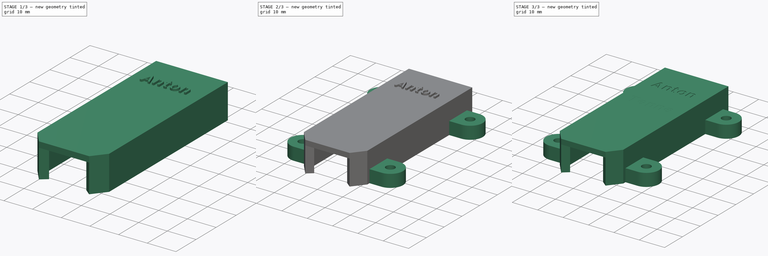
[diagram: build sequence overview — one tinted view per stage of 3, left to right]
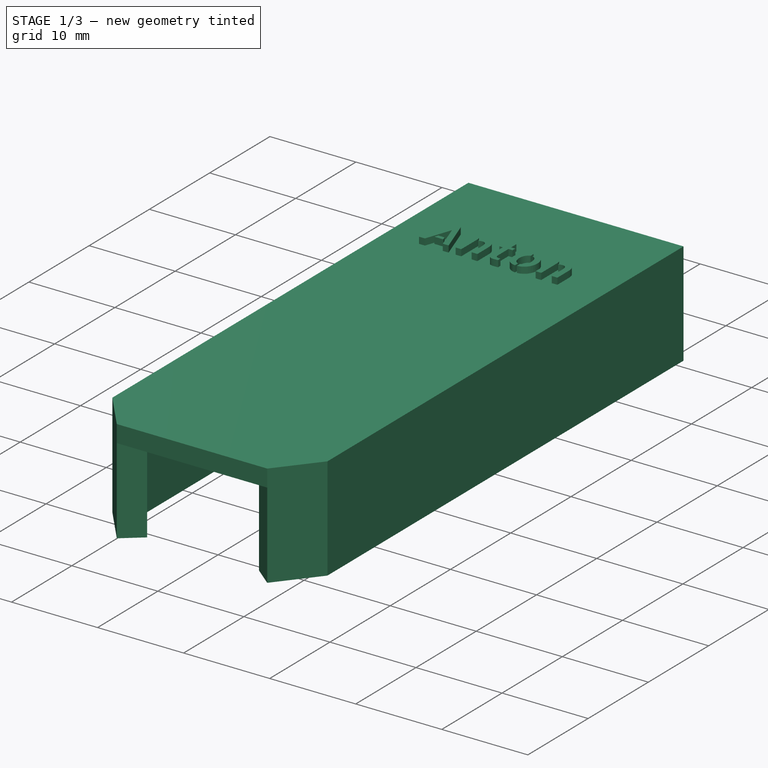
[diagram: stage 1 of 3 — iso view after this stage's code; geometry added in this stage tinted green]
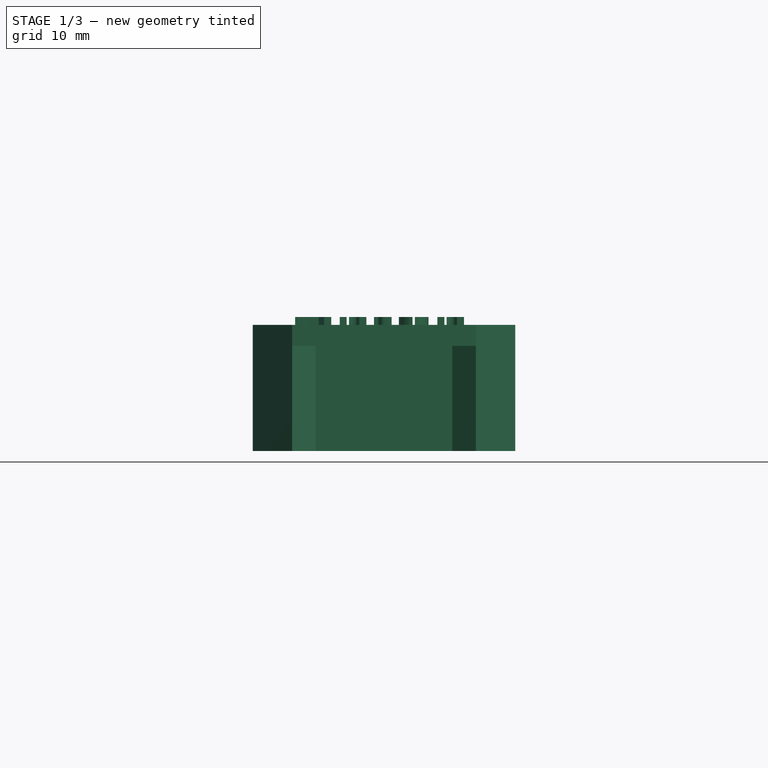
[diagram: stage 1 of 3 — front view after this stage's code; geometry added in this stage tinted green]
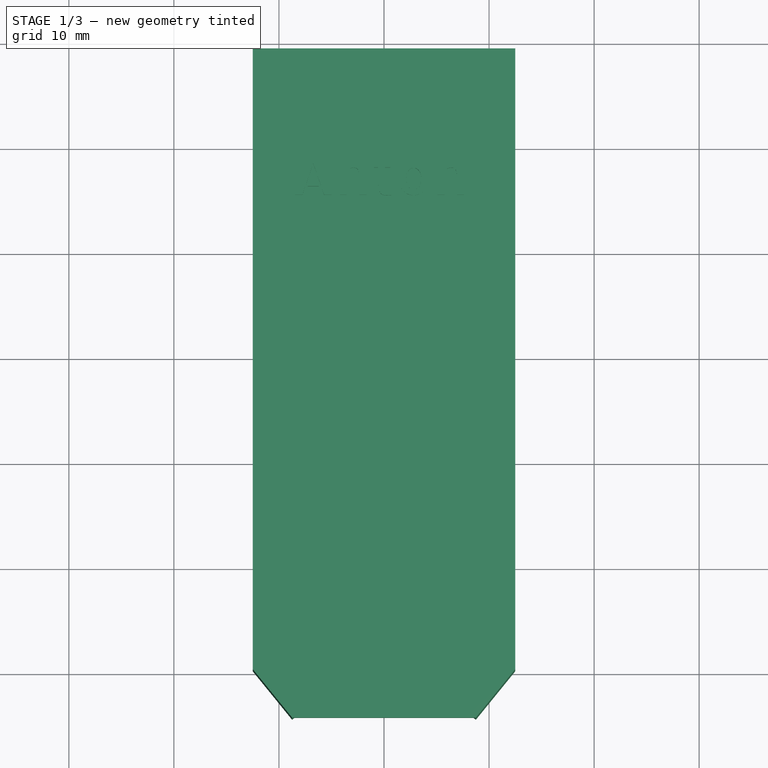
[diagram: stage 1 of 3 — top view after this stage's code; geometry added in this stage tinted green]
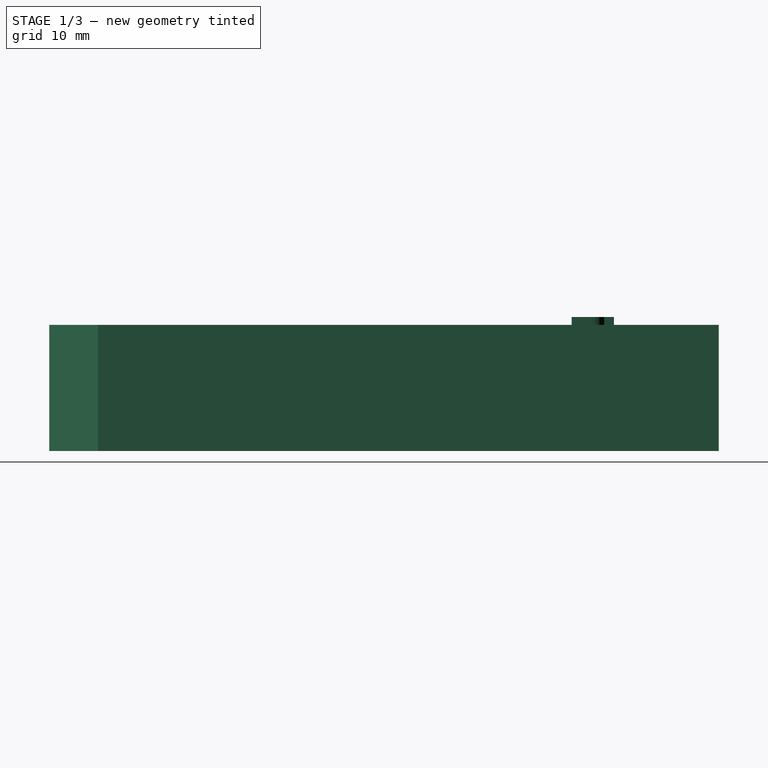
[diagram: stage 1 of 3 — right view after this stage's code; geometry added in this stage tinted green]
FCSTD DOCUMENT  (FreeCAD 1.0R39319 (Git))
Label: Bt_Antennenhalter
License: All rights reserved
LicenseURL: http://en.wikipedia.org/wiki/All_rights_reserved
objects: Sketcher::SketchObject×5, PartDesign::Pad×3, Part::Feature×2, Part::Extrusion×2, Part::Cut×2, PartDesign::Pocket×1, PartDesign::Body×1
note: 29 computed .brp shape members not serialized (recipe doc carries the construction recipe); baked Part::Feature solids carry a one-line shape summary decoded from their .brp

FEATURE [Sketcher::SketchObject] Sketch
  ArcFitTolerance = 1e-06
  AttachmentSupport = -> [XY_Plane]
  FullyConstrained = true
  MakeInternals = false
  MapMode = 5
  sketch-geometry (27):
    g0: LineSegment StartX=-9.5 StartY=0 StartZ=0 EndX=-9.5 EndY=26.4 EndZ=0
    g1: LineSegment StartX=-9.5 StartY=26.4 StartZ=0 EndX=9.5 EndY=26.4 EndZ=0
    g2: LineSegment StartX=9.5 StartY=26.4 StartZ=0 EndX=9.5 EndY=0 EndZ=0
    g3: LineSegment StartX=-12.5 StartY=0 StartZ=0 EndX=-12.5 EndY=29.4 EndZ=0
    g4: LineSegment StartX=-12.5 StartY=29.4 StartZ=0 EndX=12.5 EndY=29.4 EndZ=0
    g5: LineSegment StartX=12.5 StartY=29.4 StartZ=0 EndX=12.5 EndY=0 EndZ=0
    g6: LineSegment StartX=-9.75 StartY=-2.5 StartZ=0 EndX=-9.75 EndY=-28.5 EndZ=0
    g7: LineSegment StartX=9.75 StartY=-2.5 StartZ=0 EndX=9.75 EndY=-28.5 EndZ=0
    g8: LineSegment StartX=12.5 StartY=-2.5 StartZ=0 EndX=12.5 EndY=-29.699 EndZ=0
    g9: LineSegment StartX=12.5 StartY=-29.699 StartZ=0 EndX=8.74325 EndY=-34.3226 EndZ=0
    g10: LineSegment StartX=8.74325 StartY=-34.3226 StartZ=0 EndX=6.5 EndY=-32.5 EndZ=0
    g11: LineSegment StartX=6.5 StartY=-32.5 StartZ=0 EndX=9.75 EndY=-28.5 EndZ=0
    g12: LineSegment StartX=-12.5 StartY=-2.5 StartZ=0 EndX=-12.5 EndY=-29.699 EndZ=0
    g13: LineSegment StartX=-12.5 StartY=-29.699 StartZ=0 EndX=-8.74325 EndY=-34.3226 EndZ=0
    g14: LineSegment StartX=-8.74325 StartY=-34.3226 StartZ=0 EndX=-6.5 EndY=-32.5 EndZ=0
    g15: LineSegment StartX=-6.5 StartY=-32.5 StartZ=0 EndX=-9.75 EndY=-28.5 EndZ=0
    g16: LineSegment [constr] StartX=-12.5 StartY=-29.699 StartZ=0 EndX=-9.75 EndY=-28.5 EndZ=0
    g17: LineSegment [constr] StartX=9.75 StartY=-28.5 StartZ=0 EndX=12.5 EndY=-29.699 EndZ=0
    g18: LineSegment StartX=-12.5 StartY=0 StartZ=0 EndX=-12.5 EndY=-2.5 EndZ=0
    g19: LineSegment StartX=-9.75 StartY=-2.5 StartZ=0 EndX=-9.5 EndY=0 EndZ=0
    g20: LineSegment StartX=12.5 StartY=-2.5 StartZ=0 EndX=12.5 EndY=0 EndZ=0
    g21: LineSegment [constr] StartX=-12.5 StartY=-2.5 StartZ=0 EndX=12.5 EndY=-2.5 EndZ=0
    g22: LineSegment [constr] StartX=-6.5 StartY=-32.5 StartZ=0 EndX=6.5 EndY=-32.5 EndZ=0
    g23: LineSegment [constr] StartX=8.74325 StartY=-34.3226 StartZ=0 EndX=-8.74325 EndY=-34.3226 EndZ=0
    g24: LineSegment [constr] StartX=-9.75 StartY=-28.5 StartZ=0 EndX=9.75 EndY=-28.5 EndZ=0
    g25: LineSegment [constr] StartX=12.5 StartY=-29.699 StartZ=0 EndX=-12.5 EndY=-29.699 EndZ=0
    g26: LineSegment StartX=9.5 StartY=0 StartZ=0 EndX=9.75 EndY=-2.5 EndZ=0
  constraints (73):
    c: PointOnObject(g0,g-1)
    c: Vertical(g0)
    c: Coincident(g1,g0)
    c: Horizontal(g1)
    c: Coincident(g2,g1)
    c: PointOnObject(g2,g-1)
    c: Vertical(g2)
    c: Distance(g2,g2) = 26.4
    c: Distance(g1,g1) = 19
    c: PointOnObject(g3,g-1)
    c: Vertical(g3)
    c: Coincident(g4,g3)
    c: Coincident(g5,g4)
    c: PointOnObject(g5,g-1)
    c: Vertical(g5)
    c: Vertical(g6)
    c: Vertical(g7)
    c: Vertical(g8)
    c: Coincident(g9,g8)
    c: Coincident(g10,g9)
    c: Coincident(g11,g10)
    c: Coincident(g11,g7)
    c: Vertical(g12)
    c: Coincident(g13,g12)
    c: Coincident(g14,g13)
    c: Coincident(g15,g14)
    c: Coincident(g15,g6)
    c: Perpendicular(g14,g13,g13) = 4.71239
    c: Perpendicular(g14,g15)
    c: Perpendicular(g10,g11)
    c: Perpendicular(g10,g9)
    c: Coincident(g16,g12)
    c: Coincident(g16,g6)
    c: Coincident(g17,g7)
    c: Coincident(g17,g8)
    c: Distance(g6,g7) = 19.5
    c: Coincident(g18,g3)
    c: Coincident(g18,g12)
    c: Vertical(g18)
    c: Coincident(g19,g6)
    c: Coincident(g19,g0)
    c: Coincident(g20,g8)
    c: Coincident(g20,g5)
    c: Vertical(g20)
    c: Coincident(g21,g12)
    c: Coincident(g21,g8)
    c: Horizontal(g21)
    c: PointOnObject(g7,g21)
    c: PointOnObject(g6,g21)
    c: Distance(g20,g20) = 2.5
    c: Distance(g5,g2) = 3
    c: DistanceX(g3,g0) = 3
    c: Coincident(g22,g14)
    c: Coincident(g22,g10)
    c: Horizontal(g22)
    c: Coincident(g23,g9)
    c: Coincident(g23,g13)
    c: Horizontal(g23)
    c: Coincident(g24,g6)
    c: Coincident(g24,g7)
    c: Horizontal(g24)
    c: Coincident(g25,g8)
    c: Coincident(g25,g12)
    c: Horizontal(g25)
    c: Distance(g7,g7) = 26
    c: Distance(g17,g17) = 3
    c: Distance(g22,g22) = 13
    c: Symmetric(g4,g3,g-2)
    c: Distance(g4,g1) = 3
    c: Coincident(g26,g2)
    c: Coincident(g26,g7)
    c: Distance(g14,g24) = 4
    c: Distance(g16,g16) = 3
FEATURE [PartDesign::Pad] Pad
  Direction = (0,0,1)
  Length = 10
  Length2 = 10
  Profile = -> Sketch
  ReferenceAxis = -> Sketch [N_Axis]
  Refine = true
  Suppressed = false
  Type = 0
FEATURE [Sketcher::SketchObject] Sketch001
  ArcFitTolerance = 1e-06
  AttachmentSupport = -> [Pad]
  ExternalGeometry = -> [Pad]
  FullyConstrained = true
  MakeInternals = false
  MapMode = 5
  Placement = pos=(0,0,10) rot=(0,0,1;0rad)
  sketch-geometry (6):
    g0: LineSegment StartX=-12.5 StartY=29.4 StartZ=0 EndX=12.5 EndY=29.4 EndZ=0
    g1: LineSegment StartX=12.5 StartY=29.4 StartZ=0 EndX=12.5 EndY=-29.699 EndZ=0
    g2: LineSegment StartX=12.5 StartY=-29.699 StartZ=0 EndX=8.74325 EndY=-34.3226 EndZ=0
    g3: LineSegment StartX=8.74325 StartY=-34.3226 StartZ=0 EndX=-8.74325 EndY=-34.3226 EndZ=0
    g4: LineSegment StartX=-8.74325 StartY=-34.3226 StartZ=0 EndX=-12.5 EndY=-29.699 EndZ=0
    g5: LineSegment StartX=-12.5 StartY=-29.699 StartZ=0 EndX=-12.5 EndY=29.4 EndZ=0
  constraints (12):
    c: Coincident(g0,g-5)
    c: Coincident(g0,g-4)
    c: Coincident(g1,g0)
    c: Coincident(g1,g-7)
    c: Coincident(g2,g1)
    c: Coincident(g2,g-7)
    c: Coincident(g3,g2)
    c: Coincident(g3,g-6)
    c: Coincident(g4,g3)
    c: Coincident(g4,g-6)
    c: Coincident(g5,g4)
    c: Coincident(g5,g0)
FEATURE [PartDesign::Pad] Pad001
  BaseFeature = -> Pad
  Direction = (0,0,1)
  Length = 2
  Length2 = 10
  Profile = -> Sketch001
  ReferenceAxis = -> Sketch001 [N_Axis]
  Refine = true
  Suppressed = false
  Type = 0
FEATURE [Sketcher::SketchObject] Sketch004
  ArcFitTolerance = 1e-06
  AttachmentSupport = -> [Pad002]
  FullyConstrained = true
  MakeInternals = false
  MapMode = 5
  Placement = pos=(0,0,12) rot=(0,0,1;0rad)
FEATURE [PartDesign::Body] Body
  AllowCompound = false
  Group = -> [Sketch,Pad,Sketch001,Pad001,Sketch002,Pocket,Sketch003,Pad002,Sketch004]
  Origin = -> Origin
  Tip = -> Pad002
FEATURE [Part::Feature] Union
  shape: bbox 16.97 x 4.022 x 2e-07 mm, 9 faces, 0 solids (baked)
FEATURE [Part::Feature] Union001
  shape: bbox 16.08 x 4.022 x 2e-07 mm, 9 faces, 0 solids (baked)
FEATURE [Part::Extrusion] Extrude
  Base = -> Union001
  Dir = (0,0,1)
  DirMode = 2
  FaceMakerClass = Part::FaceMakerBullseye
  FaceMakerMode = 3
  LengthFwd = 1
  LengthRev = 0
  Placement = pos=(0,0,-0.25) rot=(0,0,1;0rad)
  Solid = false
  Symmetric = false
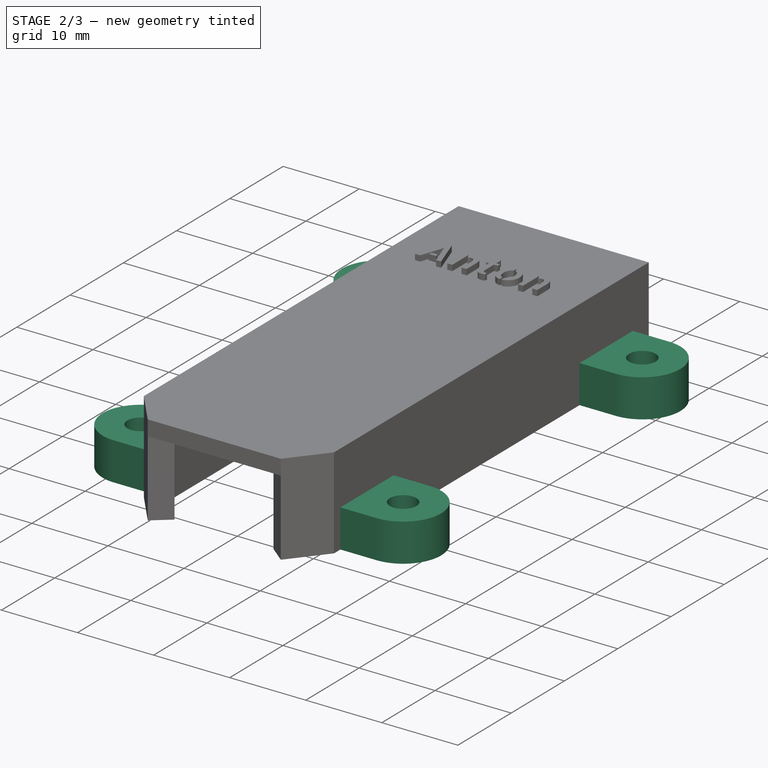
[diagram: stage 2 of 3 — iso view after this stage's code; geometry added in this stage tinted green]
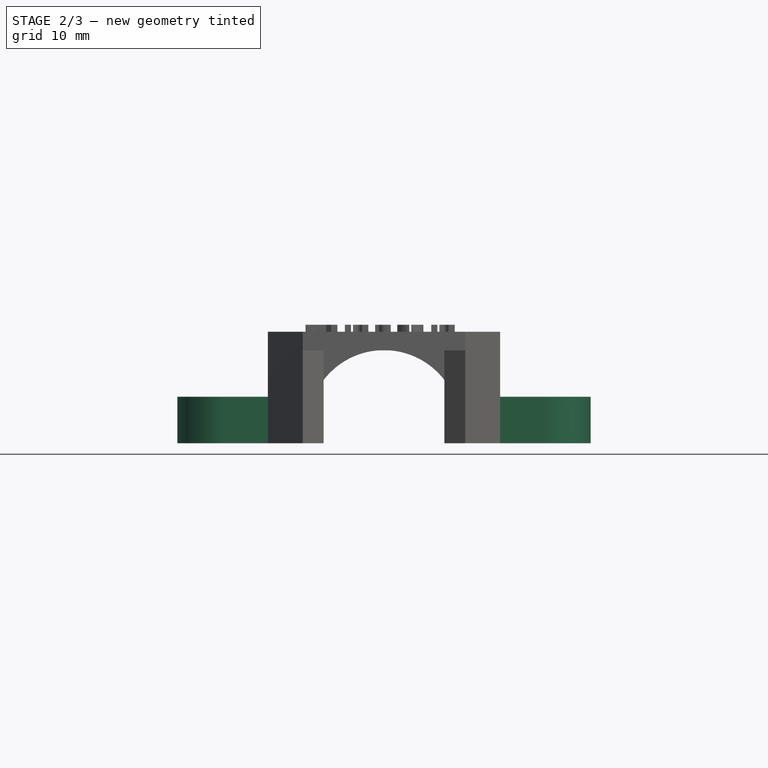
[diagram: stage 2 of 3 — front view after this stage's code; geometry added in this stage tinted green]
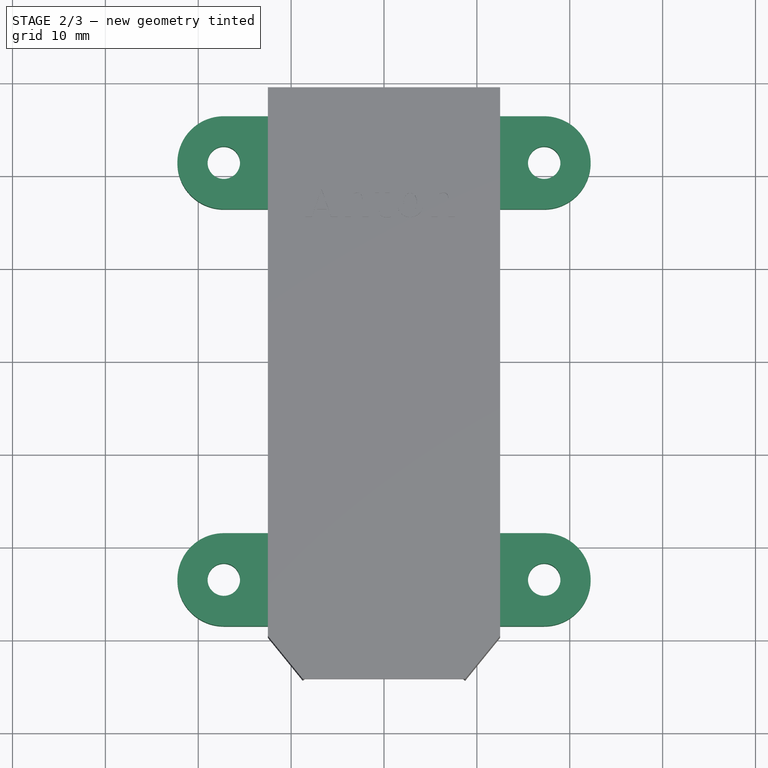
[diagram: stage 2 of 3 — top view after this stage's code; geometry added in this stage tinted green]
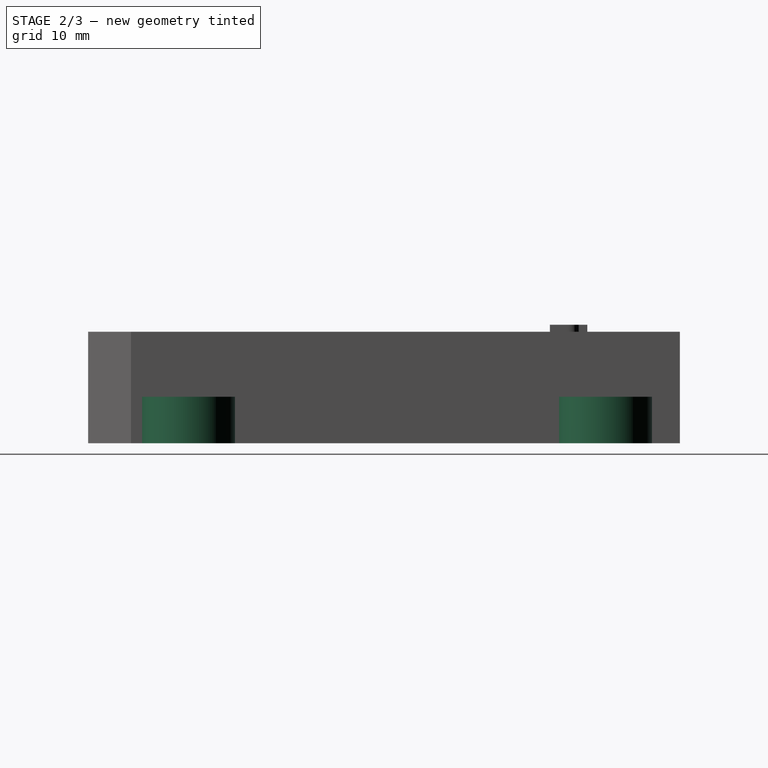
[diagram: stage 2 of 3 — right view after this stage's code; geometry added in this stage tinted green]
FEATURE [Sketcher::SketchObject] Sketch002
  ArcFitTolerance = 1e-06
  AttachmentSupport = -> [Pad001]
  FullyConstrained = false
  MakeInternals = false
  MapMode = 5
  Placement = pos=(0,29.4,-7.3e-15) rot=(0,0.707107,0.707107;3.14159rad)
  sketch-geometry (4):
    g0: LineSegment StartX=-8.18015 StartY=-4.32043 StartZ=0 EndX=-8.18015 EndY=1.84078 EndZ=0
    g1: LineSegment StartX=8.18015 StartY=-4.32043 StartZ=0 EndX=8.18015 EndY=1.84078 EndZ=0
    g2: ArcOfCircle CenterX=0 CenterY=1.84078 CenterZ=0 NormalX=0 NormalY=0 NormalZ=1 AngleXU=0 Radius=8.18015 StartAngle=0 EndAngle=3.14159
    g3: LineSegment StartX=-8.18015 StartY=-4.32043 StartZ=0 EndX=8.18015 EndY=-4.32043 EndZ=0
  constraints (8):
    c: Vertical(g1)
    c: PointOnObject(g2,g-2)
    c: Vertical(g0)
    c: Coincident(g3,g0)
    c: Coincident(g3,g1)
    c: Horizontal(g3)
    c: Tangent(g2,g0) = 1.5708
    c: Tangent(g2,g1) = -1.5708
FEATURE [PartDesign::Pocket] Pocket
  BaseFeature = -> Pad001
  Direction = (0,-1,2e-16)
  Length = 3
  Length2 = 5
  Profile = -> Sketch002
  ReferenceAxis = -> Sketch002 [N_Axis]
  Refine = true
  Suppressed = false
  Type = 0
FEATURE [Sketcher::SketchObject] Sketch003
  ArcFitTolerance = 1e-06
  AttachmentSupport = -> [Pocket]
  ExternalGeometry = -> [Pocket]
  FullyConstrained = true
  MakeInternals = false
  MapMode = 5
  Placement = pos=(0,0,0) rot=(1,0,0;3.14159rad)
  sketch-geometry (26):
    g0: LineSegment StartX=9.75 StartY=28.5 StartZ=0 EndX=17.25 EndY=28.5 EndZ=0
    g1: LineSegment StartX=9.75 StartY=18.5 StartZ=0 EndX=17.25 EndY=18.5 EndZ=0
    g2: LineSegment StartX=9.5 StartY=-16.4 StartZ=0 EndX=17.25 EndY=-16.4 EndZ=0
    g3: LineSegment StartX=9.5 StartY=-26.4 StartZ=0 EndX=17.25 EndY=-26.4 EndZ=0
    g4: LineSegment StartX=-9.75 StartY=28.5 StartZ=0 EndX=-17.25 EndY=28.5 EndZ=0
    g5: LineSegment StartX=-9.75 StartY=18.5 StartZ=0 EndX=-17.25 EndY=18.5 EndZ=0
    g6: LineSegment StartX=-9.5 StartY=-16.4 StartZ=0 EndX=-17.25 EndY=-16.4 EndZ=0
    g7: LineSegment StartX=-9.5 StartY=-26.4 StartZ=0 EndX=-17.25 EndY=-26.4 EndZ=0
    g8: LineSegment [constr] StartX=-9.75 StartY=28.5 StartZ=0 EndX=9.75 EndY=28.5 EndZ=0
    g9: LineSegment [constr] StartX=9.75 StartY=18.5 StartZ=0 EndX=-9.75 EndY=18.5 EndZ=0
    g10: LineSegment [constr] StartX=9.5 StartY=-26.4 StartZ=0 EndX=-9.5 EndY=-26.4 EndZ=0
    g11: LineSegment [constr] StartX=-9.5 StartY=-16.4 StartZ=0 EndX=9.5 EndY=-16.4 EndZ=0
    g12: LineSegment [constr] StartX=17.25 StartY=28.5 StartZ=0 EndX=17.25 EndY=-26.4 EndZ=0
    g13: LineSegment [constr] StartX=-17.25 StartY=28.5 StartZ=0 EndX=-17.25 EndY=-26.4 EndZ=0
    g14: ArcOfCircle CenterX=17.25 CenterY=23.5 CenterZ=0 NormalX=0 NormalY=0 NormalZ=1 AngleXU=0 Radius=5 StartAngle=4.71239 EndAngle=7.85398
    g15: ArcOfCircle CenterX=17.25 CenterY=-21.4 CenterZ=0 NormalX=0 NormalY=0 NormalZ=1 AngleXU=0 Radius=5 StartAngle=4.71239 EndAngle=7.85398
    g16: ArcOfCircle CenterX=-17.25 CenterY=-21.4 CenterZ=0 NormalX=0 NormalY=0 NormalZ=1 AngleXU=0 Radius=5 StartAngle=1.5708 EndAngle=4.71239
    g17: ArcOfCircle CenterX=-17.25 CenterY=23.5 CenterZ=0 NormalX=0 NormalY=0 NormalZ=1 AngleXU=0 Radius=5 StartAngle=1.5708 EndAngle=4.71239
    g18: Circle CenterX=-17.25 CenterY=23.5 CenterZ=0 NormalX=0 NormalY=0 NormalZ=1 AngleXU=0 Radius=1.75
    g19: Circle CenterX=17.25 CenterY=23.5 CenterZ=0 NormalX=0 NormalY=0 NormalZ=1 AngleXU=0 Radius=1.75
    g20: Circle CenterX=17.25 CenterY=-21.4 CenterZ=0 NormalX=0 NormalY=0 NormalZ=1 AngleXU=0 Radius=1.75
    g21: Circle CenterX=-17.25 CenterY=-21.4 CenterZ=0 NormalX=0 NormalY=0 NormalZ=1 AngleXU=0 Radius=1.75
    g22: LineSegment StartX=-9.75 StartY=18.5 StartZ=0 EndX=-9.75 EndY=28.5 EndZ=0
    g23: LineSegment StartX=9.75 StartY=28.5 StartZ=0 EndX=9.75 EndY=18.5 EndZ=0
    g24: LineSegment StartX=9.5 StartY=-26.4 StartZ=0 EndX=9.5 EndY=-16.4 EndZ=0
    g25: LineSegment StartX=-9.5 StartY=-16.4 StartZ=0 EndX=-9.5 EndY=-26.4 EndZ=0
  constraints (68):
    c: Coincident(g0,g-4)
    c: Horizontal(g0)
    c: PointOnObject(g1,g-4)
    c: Horizontal(g1)
    c: PointOnObject(g2,g-5)
    c: Horizontal(g2)
    c: Coincident(g3,g-5)
    c: Horizontal(g3)
    c: Coincident(g4,g-8)
    c: Horizontal(g4)
    c: PointOnObject(g5,g-7)
    c: Horizontal(g5)
    c: PointOnObject(g6,g-6)
    c: Horizontal(g6)
    c: Coincident(g7,g-6)
    c: Horizontal(g7)
    c: Coincident(g8,g4)
    c: Coincident(g8,g0)
    c: Coincident(g9,g1)
    c: Coincident(g9,g5)
    c: Horizontal(g9)
    c: Coincident(g10,g3)
    c: Coincident(g10,g7)
    c: Coincident(g11,g6)
    c: Coincident(g11,g2)
    c: Horizontal(g11)
    c: Coincident(g12,g0)
    c: Coincident(g12,g3)
    c: Vertical(g12)
    c: Coincident(g13,g4)
    c: Coincident(g13,g7)
    c: Vertical(g13)
    c: PointOnObject(g5,g13)
    c: PointOnObject(g6,g13)
    c: PointOnObject(g2,g12)
    c: PointOnObject(g1,g12)
    c: Coincident(g14,g0)
    c: Coincident(g14,g1)
    c: Coincident(g15,g2)
    c: Coincident(g15,g3)
    c: PointOnObject(g16,g13)
    c: Coincident(g16,g6)
    c: Coincident(g16,g7)
    c: PointOnObject(g17,g13)
    c: Coincident(g17,g4)
    c: Coincident(g17,g5)
    c: PointOnObject(g14,g12)
    c: PointOnObject(g15,g12)
    c: Equal(g17,g16)
    c: Radius(g14) = 5
    c: Coincident(g18,g17)
    c: Coincident(g19,g14)
    c: Coincident(g20,g15)
    c: Coincident(g21,g16)
    c: Equal(g21,g20)
    c: Equal(g20,g19)
    c: Equal(g19,g18)
    c: Diameter(g19) = 3.5
    c: Equal(g4,g0)
    c: Distance(g0,g0) = 7.5
    c: Coincident(g22,g5)
    c: Coincident(g22,g4)
    c: Coincident(g23,g0)
    c: Coincident(g23,g1)
    c: Coincident(g24,g3)
    c: Coincident(g24,g2)
    c: Coincident(g25,g6)
    c: Coincident(g25,g7)
FEATURE [PartDesign::Pad] Pad002
  BaseFeature = -> Pocket
  Direction = (0,0,-1)
  Length = 5
  Length2 = 10
  Profile = -> Sketch003
  ReferenceAxis = -> Sketch003 [N_Axis]
  Refine = true
  Reversed = true
  Suppressed = false
  Type = 0
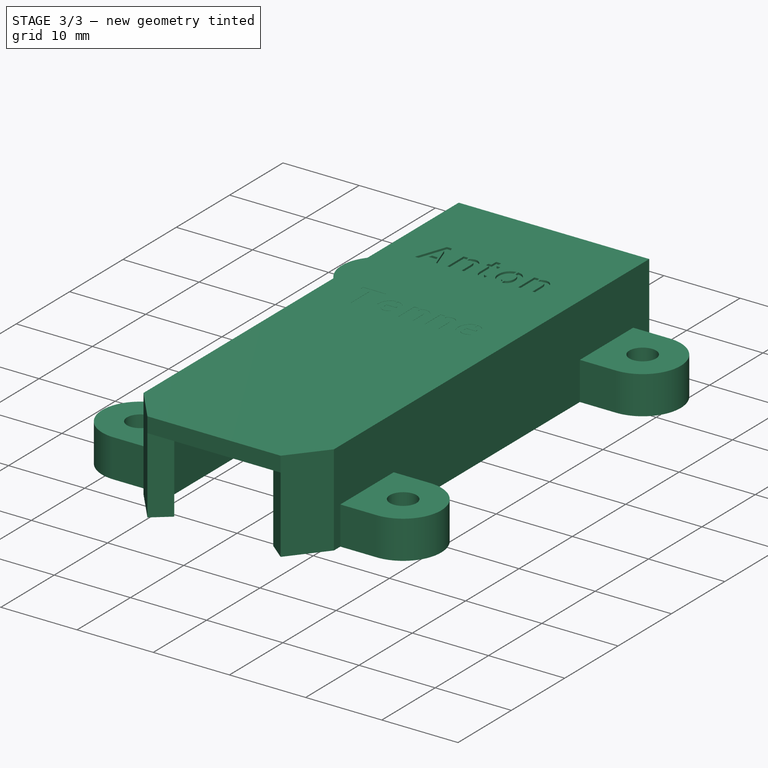
[diagram: stage 3 of 3 — iso view after this stage's code; geometry added in this stage tinted green]
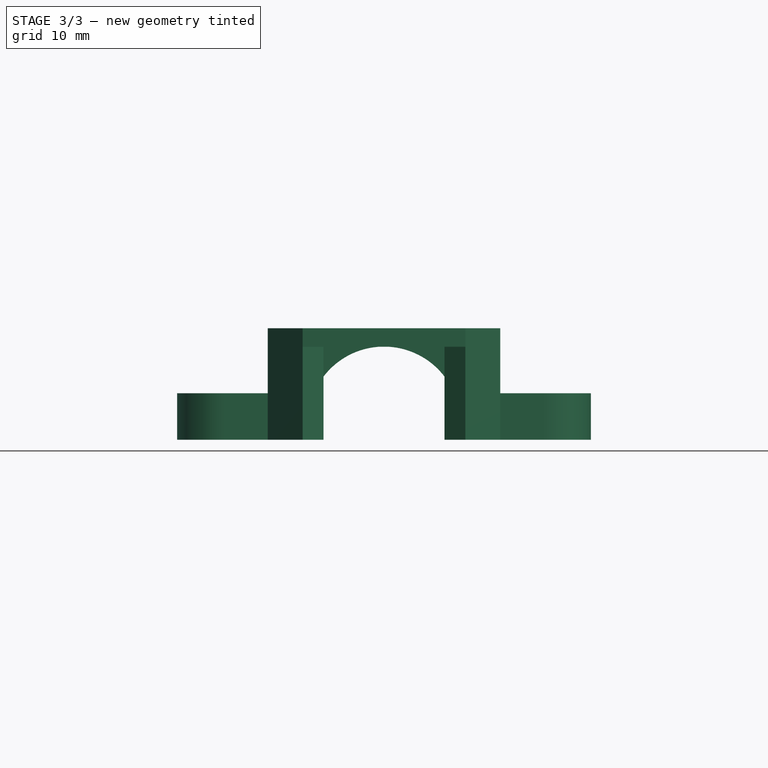
[diagram: stage 3 of 3 — front view after this stage's code; geometry added in this stage tinted green]
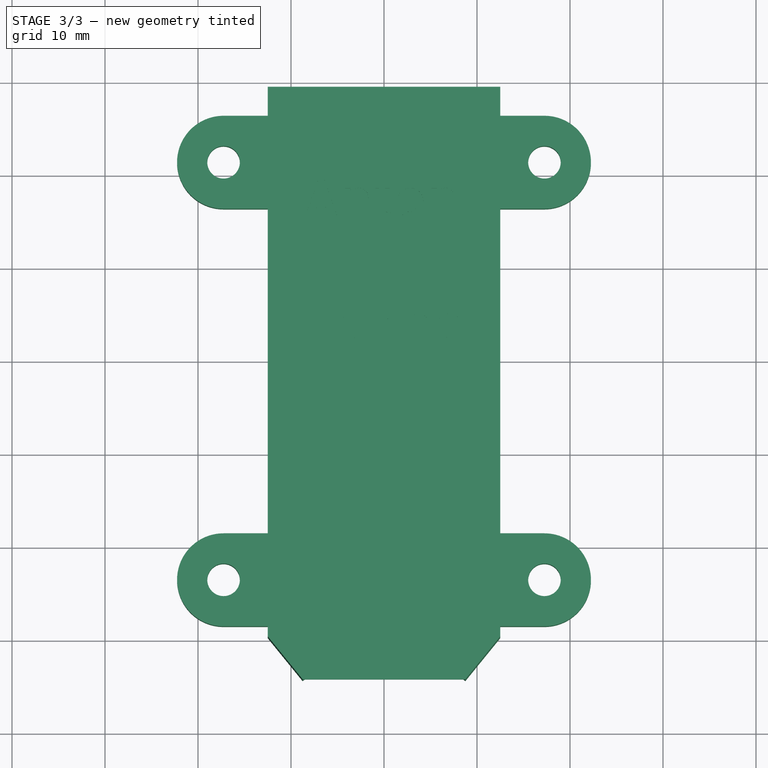
[diagram: stage 3 of 3 — top view after this stage's code; geometry added in this stage tinted green]
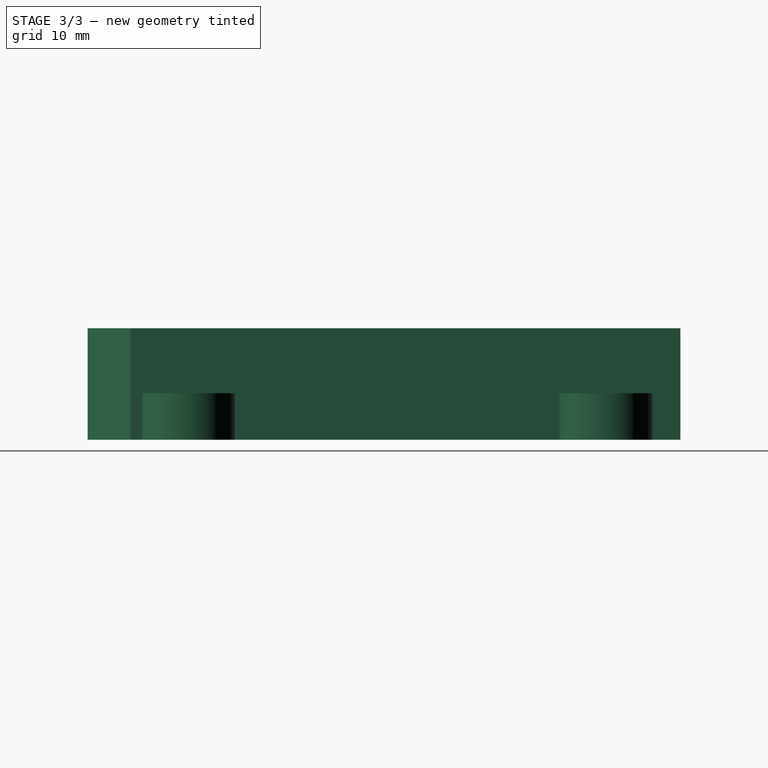
[diagram: stage 3 of 3 — right view after this stage's code; geometry added in this stage tinted green]
FEATURE [Part::Extrusion] Extrude001
  Base = -> Union
  Dir = (0,0,1)
  DirMode = 2
  FaceMakerClass = Part::FaceMakerBullseye
  FaceMakerMode = 3
  LengthFwd = 1
  LengthRev = 0
  Placement = pos=(0,0,-0.25) rot=(0,0,1;0rad)
  Solid = false
  Symmetric = false
FEATURE [Part::Cut] Cut
  Base = -> Body
  Tool = -> Extrude
FEATURE [Part::Cut] Cut001
  Base = -> Cut
  Tool = -> Extrude001
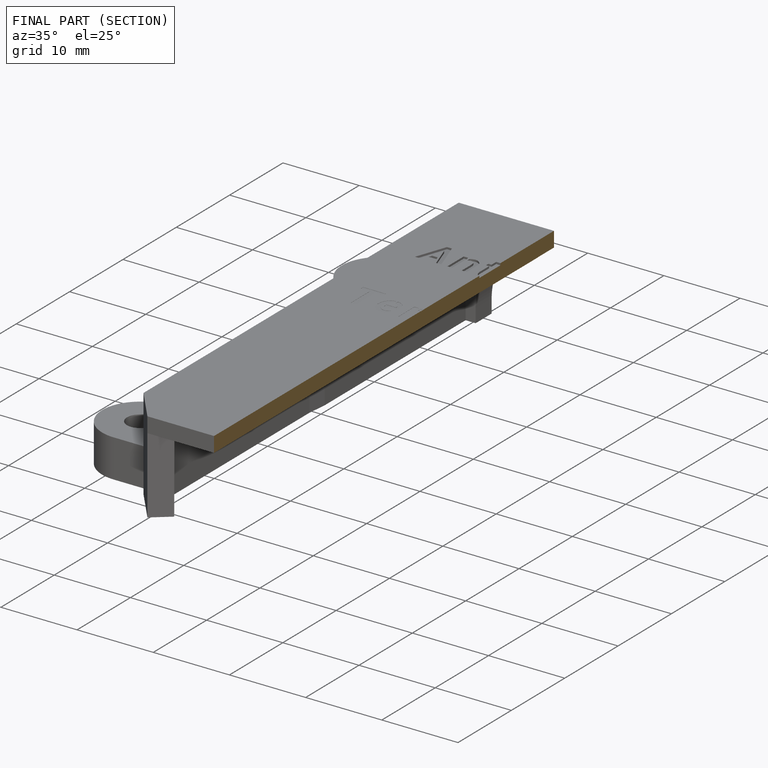
[diagram: finished part — half-section view (interior)]
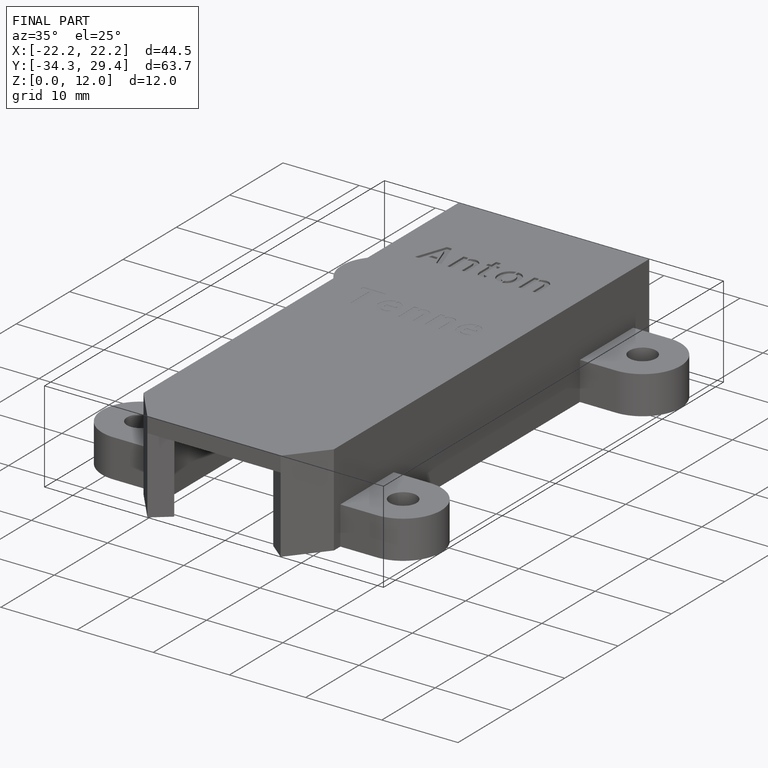
[diagram: finished part — iso view with bounding-box wireframe]
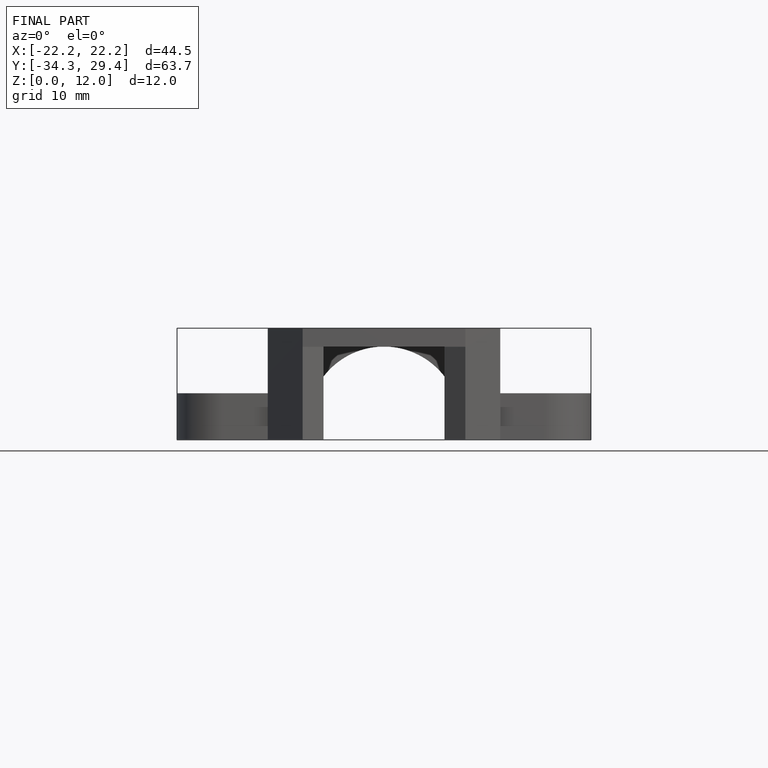
[diagram: finished part — front view with bounding-box wireframe]
